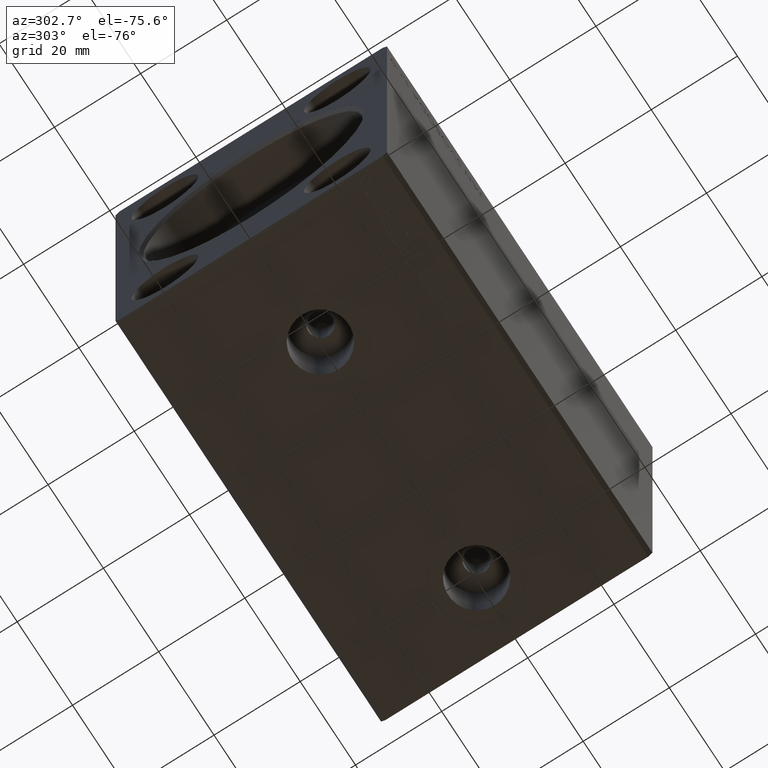
[diagram: clean part render]
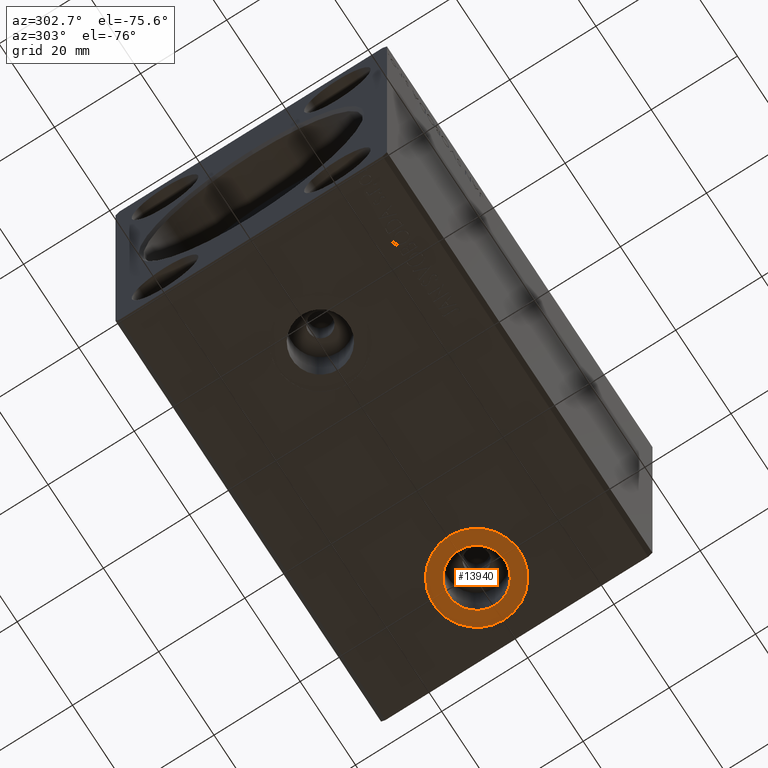
[diagram: same view with one face highlighted and labeled with its STEP entity id]
A machine part, auxiliary view. The second image highlights one B-rep face of the part: STEP entity #13940.
In plain terms, the highlighted planar face has unit normal (0, 0, -1).
Its self-contained STEP definition (entity closure, byte-faithful):
#488 = DIRECTION ( 'NONE',  ( 0.000000000000000000, 0.000000000000000000, -1.000000000000000000 ) ) ;
#533 = CARTESIAN_POINT ( 'NONE',  ( 91.50000000000000000, -8.686741144444092298E-15, -42.40000000000000568 ) ) ;
#725 = CARTESIAN_POINT ( 'NONE',  ( 81.50000000000000000, -9.911387943591445357E-15, -42.40000000000000568 ) ) ;
#788 = AXIS2_PLACEMENT_3D ( 'NONE', #33753, #488, #37400 ) ;
#2335 = DIRECTION ( 'NONE',  ( -1.000000000000000000, 0.000000000000000000, 0.000000000000000000 ) ) ;
#3747 = DIRECTION ( 'NONE',  ( -1.000000000000000000, 0.000000000000000000, 0.000000000000000000 ) ) ;
#5271 = EDGE_CURVE ( 'NONE', #34124, #24885, #13917, .T. ) ;
#5284 = CARTESIAN_POINT ( 'NONE',  ( 71.50000000000001421, -9.911387943591445357E-15, -42.40000000000000568 ) ) ;
#5490 = EDGE_CURVE ( 'NONE', #24885, #34124, #37245, .T. ) ;
#9961 = DIRECTION ( 'NONE',  ( 0.000000000000000000, 0.000000000000000000, -1.000000000000000000 ) ) ;
#10207 = ORIENTED_EDGE ( 'NONE', *, *, #28286, .F. ) ;
#12246 = CARTESIAN_POINT ( 'NONE',  ( 74.92000000000000171, -9.911387943591445357E-15, -42.40000000000000568 ) ) ;
#12669 = AXIS2_PLACEMENT_3D ( 'NONE', #31713, #9961, #26277 ) ;
#12978 = DIRECTION ( 'NONE',  ( 0.000000000000000000, 0.000000000000000000, -1.000000000000000000 ) ) ;
#13917 = CIRCLE ( 'NONE', #23501, 9.999999999999994671 ) ;
#13940 = ADVANCED_FACE ( 'NONE', ( #27093, #20419 ), #24282, .T. ) ;
#19633 = EDGE_CURVE ( 'NONE', #22705, #28075, #40583, .T. ) ;
#20419 = FACE_OUTER_BOUND ( 'NONE', #40083, .T. ) ;
#22490 = DIRECTION ( 'NONE',  ( 0.000000000000000000, 0.000000000000000000, -1.000000000000000000 ) ) ;
#22705 = VERTEX_POINT ( 'NONE', #12246 ) ;
#23293 = ORIENTED_EDGE ( 'NONE', *, *, #5271, .T. ) ;
#23501 = AXIS2_PLACEMENT_3D ( 'NONE', #33283, #30251, #36294 ) ;
#24282 = PLANE ( 'NONE',  #788 ) ;
#24306 = CIRCLE ( 'NONE', #12669, 6.580000000000002736 ) ;
#24885 = VERTEX_POINT ( 'NONE', #533 ) ;
#26277 = DIRECTION ( 'NONE',  ( -1.000000000000000000, 0.000000000000000000, 0.000000000000000000 ) ) ;
#27093 = FACE_BOUND ( 'NONE', #29204, .T. ) ;
#28075 = VERTEX_POINT ( 'NONE', #35837 ) ;
#28286 = EDGE_CURVE ( 'NONE', #28075, #22705, #24306, .T. ) ;
#29204 = EDGE_LOOP ( 'NONE', ( #41400, #10207 ) ) ;
#29363 = CARTESIAN_POINT ( 'NONE',  ( 81.50000000000000000, -9.911387943591445357E-15, -42.40000000000000568 ) ) ;
#30251 = DIRECTION ( 'NONE',  ( 0.000000000000000000, 0.000000000000000000, -1.000000000000000000 ) ) ;
#31644 = AXIS2_PLACEMENT_3D ( 'NONE', #725, #12978, #3747 ) ;
#31713 = CARTESIAN_POINT ( 'NONE',  ( 81.50000000000000000, -9.911387943591445357E-15, -42.40000000000000568 ) ) ;
#33106 = AXIS2_PLACEMENT_3D ( 'NONE', #29363, #22490, #2335 ) ;
#33283 = CARTESIAN_POINT ( 'NONE',  ( 81.50000000000000000, -9.911387943591445357E-15, -42.40000000000000568 ) ) ;
#33753 = CARTESIAN_POINT ( 'NONE',  ( 81.50000000000000000, -9.911387943591445357E-15, -42.40000000000000568 ) ) ;
#34090 = ORIENTED_EDGE ( 'NONE', *, *, #5490, .T. ) ;
#34124 = VERTEX_POINT ( 'NONE', #5284 ) ;
#35837 = CARTESIAN_POINT ( 'NONE',  ( 88.08000000000001251, -9.105570349752486315E-15, -42.40000000000000568 ) ) ;
#36294 = DIRECTION ( 'NONE',  ( -1.000000000000000000, 0.000000000000000000, 0.000000000000000000 ) ) ;
#37245 = CIRCLE ( 'NONE', #33106, 9.999999999999994671 ) ;
#37400 = DIRECTION ( 'NONE',  ( -1.000000000000000000, 0.000000000000000000, -0.000000000000000000 ) ) ;
#40083 = EDGE_LOOP ( 'NONE', ( #23293, #34090 ) ) ;
#40583 = CIRCLE ( 'NONE', #31644, 6.580000000000002736 ) ;
#41400 = ORIENTED_EDGE ( 'NONE', *, *, #19633, .F. ) ;